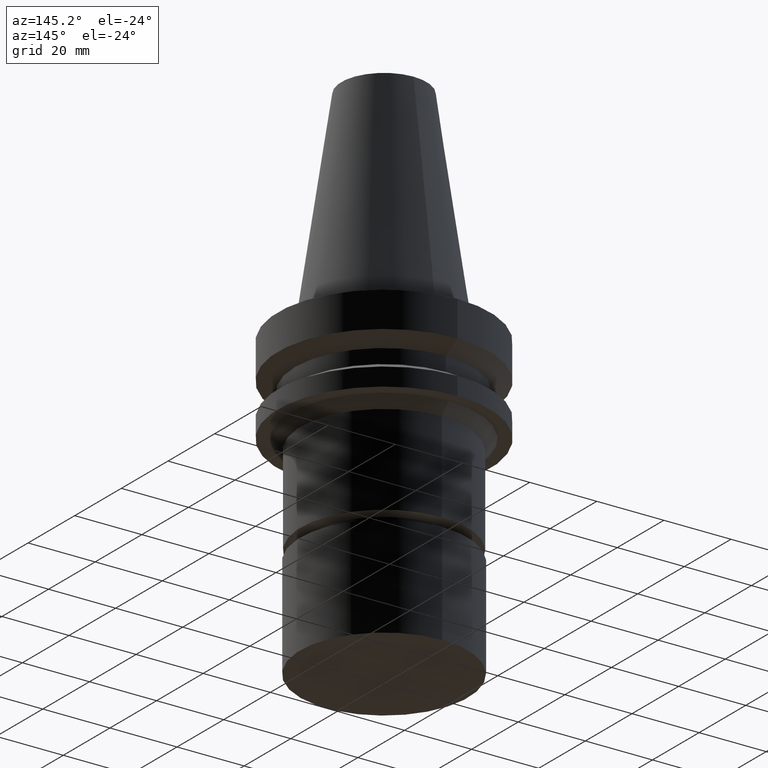
[diagram: clean part render]
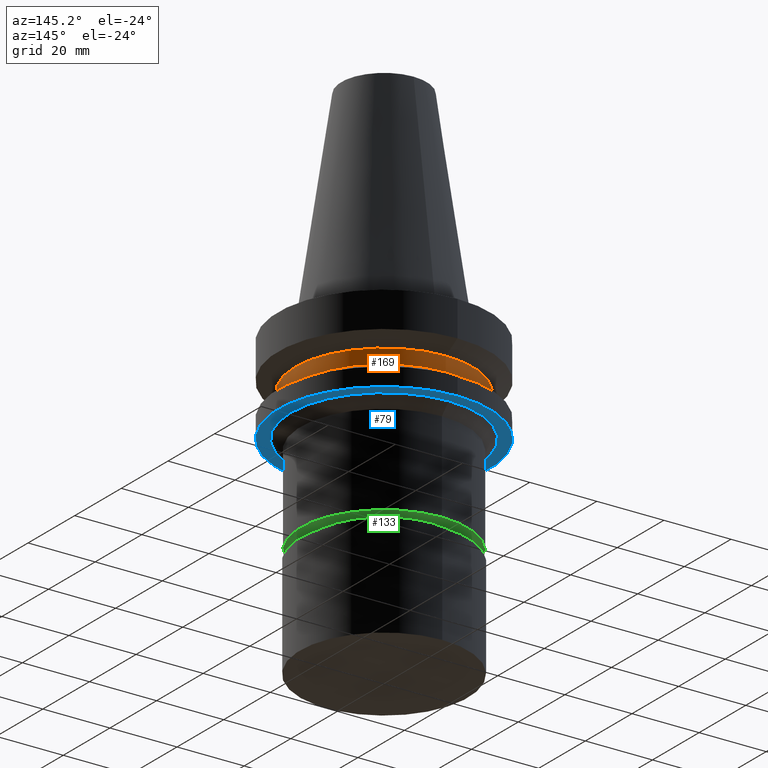
[diagram: same view with three faces highlighted in distinct colors, each labeled with its STEP entity id]
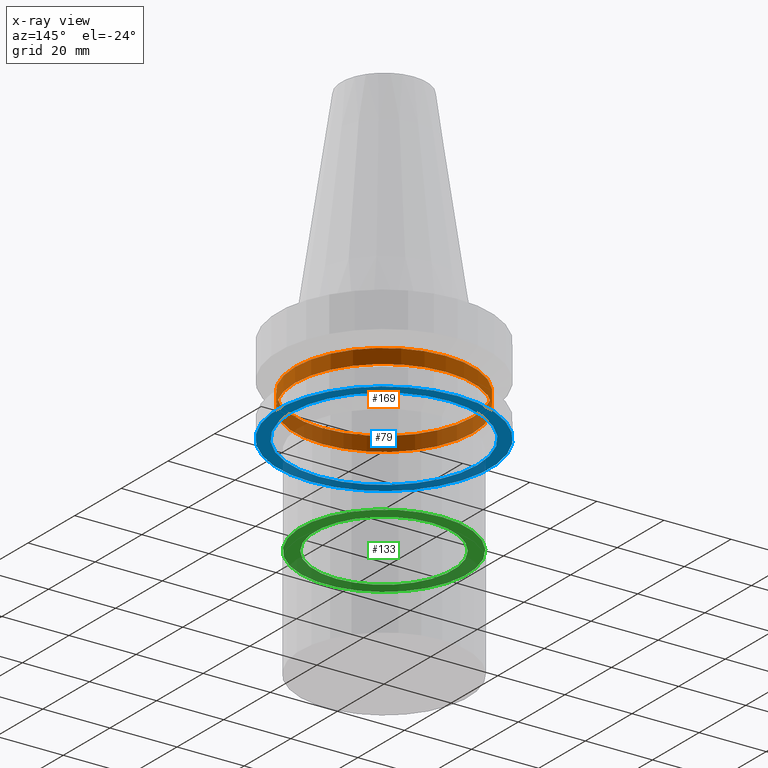
[diagram: x-ray of the same camera — body ghosted, the three highlighted faces saturated]
A machine part, auxiliary view with three faces highlighted in distinct colors.
The next image is the same camera in x-ray (body ghosted, the three faces saturated) — at least one of them is partly hidden behind the body in this view.
Their STEP definitions:

[orange] entity #169 — the highlighted cylindrical surface (bore or boss wall) has radius 26.5 mm, axis along (0, -0, -1).
#81=EDGE_CURVE('Unnamed[1]',#211,#211,#212,.T.);
#100=EDGE_CURVE('Unnamed[1]',#240,#240,#241,.T.);
#169=ADVANCED_FACE('Unnamed[1]',(#346,#347),#348,.T.);
#211=VERTEX_POINT('',#389);
#212=CIRCLE('',#390,26.4999999999994);
#240=VERTEX_POINT('',#426);
#241=CIRCLE('',#427,26.5);
#346=FACE_BOUND('',#558,.T.);
#347=FACE_BOUND('',#559,.T.);
#348=CYLINDRICAL_SURFACE('',#560,26.4999999999997);
#389=CARTESIAN_POINT('',(8.8494551369045E-016,26.4999999999995,-14.4522569986152));
#390=AXIS2_PLACEMENT_3D('',#592,#593,#594);
#426=CARTESIAN_POINT('',(1.1479681728942E-015,26.5,-18.7477430013855));
#427=AXIS2_PLACEMENT_3D('',#624,#625,#626);
#558=EDGE_LOOP('',(#741));
#559=EDGE_LOOP('',(#742));
#560=AXIS2_PLACEMENT_3D('',#743,#744,#745);
#592=CARTESIAN_POINT('',(8.84945513690449E-016,5.72797641111494E-014,-14.4522569986152));
#593=DIRECTION('',(6.12323399573677E-017,-2.45986715532853E-016,-1.0));
#594=DIRECTION('',(1.02351894597382E-032,1.0,-2.45986715532853E-016));
#624=CARTESIAN_POINT('',(1.1479681728942E-015,5.62231316177103E-014,-18.7477430013855));
#625=DIRECTION('',(6.12323399573677E-017,-2.4598671553297E-016,-1.0));
#626=DIRECTION('',(1.02351894597447E-032,1.0,-2.4598671553297E-016));
#741=ORIENTED_EDGE('',*,*,#100,.F.);
#742=ORIENTED_EDGE('',*,*,#81,.T.);
#743=CARTESIAN_POINT('',(1.01645684329232E-015,5.67514478644298E-014,-16.6000000000003));
#744=DIRECTION('',(6.12323399573677E-017,-2.45986715532851E-016,-1.0));
#745=DIRECTION('',(1.0235189459738E-032,1.0,-2.45986715532851E-016));

[blue] entity #79 — the highlighted conical surface has half-angle 89.998 deg.
#79=ADVANCED_FACE('Unnamed[1]',(#207,#208),#209,.F.);
#135=EDGE_CURVE('Unnamed[1]',#292,#292,#293,.T.);
#154=EDGE_CURVE('Unnamed[1]',#323,#323,#324,.T.);
#207=FACE_BOUND('',#384,.T.);
#208=FACE_BOUND('',#385,.T.);
#209=CONICAL_SURFACE('',#386,29.6500621984489,1.57075486116235);
#292=VERTEX_POINT('',#491);
#293=CIRCLE('',#492,31.5000000000003);
#323=VERTEX_POINT('',#529);
#324=CIRCLE('',#530,27.8001243968974);
#384=EDGE_LOOP('',(#587));
#385=EDGE_LOOP('',(#588));
#386=AXIS2_PLACEMENT_3D('',#589,#590,#591);
#491=CARTESIAN_POINT('',(1.65328282719222E-015,31.5000000000004,-27.0001575694036));
#492=AXIS2_PLACEMENT_3D('',#680,#681,#682);
#529=CARTESIAN_POINT('',(1.65327343306854E-015,27.8001243968975,-27.0000041517213));
#530=AXIS2_PLACEMENT_3D('',#716,#717,#718);
#587=ORIENTED_EDGE('',*,*,#154,.F.);
#588=ORIENTED_EDGE('',*,*,#135,.T.);
#589=CARTESIAN_POINT('',(1.65327813013038E-015,5.41931661322635E-014,-27.0000808605625));
#590=DIRECTION('',(6.12323399573677E-017,-2.45986715532965E-016,-1.0));
#591=DIRECTION('',(1.02351894597422E-032,1.0,-2.45986715532965E-016));
#680=CARTESIAN_POINT('',(1.65328282719222E-015,5.41931472629076E-014,-27.0001575694036));
#681=DIRECTION('',(6.12323399573677E-017,-2.45986715532946E-016,-1.0));
#682=DIRECTION('',(1.02351894597414E-032,1.0,-2.45986715532946E-016));
#716=CARTESIAN_POINT('',(1.65327343306854E-015,5.41931850016194E-014,-27.0000041517213));
#717=DIRECTION('',(6.12323399573677E-017,-2.45986715532871E-016,-1.0));
#718=DIRECTION('',(1.02351894597366E-032,1.0,-2.45986715532871E-016));

[green] entity #133 — the highlighted planar face has unit normal (0, 0, -1).
#105=EDGE_CURVE('Unnamed[1]',#248,#248,#249,.T.);
#119=EDGE_CURVE('Unnamed[1]',#269,#269,#270,.T.);
#133=ADVANCED_FACE('Unnamed[1]',(#288,#289),#290,.T.);
#248=VERTEX_POINT('',#436);
#249=CIRCLE('',#437,20.499999999991);
#269=VERTEX_POINT('',#463);
#270=CIRCLE('',#464,24.8000000000002);
#288=FACE_BOUND('',#486,.T.);
#289=FACE_OUTER_BOUND('',#487,.T.);
#290=PLANE('',#488);
#436=CARTESIAN_POINT('',(3.49025302591329E-015,20.4999999999911,-57.0001575694044));
#437=AXIS2_PLACEMENT_3D('',#633,#634,#635);
#463=CARTESIAN_POINT('',(3.49025302591327E-015,24.8000000000003,-57.0001575694041));
#464=AXIS2_PLACEMENT_3D('',#656,#657,#658);
#486=EDGE_LOOP('',(#675));
#487=EDGE_LOOP('',(#676));
#488=AXIS2_PLACEMENT_3D('',#677,#678,#679);
#633=CARTESIAN_POINT('',(3.49025302591329E-015,4.68135457969201E-014,-57.0001575694044));
#634=DIRECTION('',(6.12323399573677E-017,-2.45986715532896E-016,-1.0));
#635=DIRECTION('',(1.02351894597376E-032,1.0,-2.45986715532896E-016));
#656=CARTESIAN_POINT('',(3.49025302591327E-015,4.68135457969201E-014,-57.0001575694041));
#657=DIRECTION('',(6.12323399573677E-017,-2.45986715532901E-016,-1.0));
#658=DIRECTION('',(1.02351894597315E-032,1.0,-2.45986715532901E-016));
#675=ORIENTED_EDGE('',*,*,#105,.F.);
#676=ORIENTED_EDGE('',*,*,#119,.T.);
#677=CARTESIAN_POINT('',(3.49025302591328E-015,22.6499999999957,-57.0001575694043));
#678=DIRECTION('',(6.12323399573677E-017,7.44815881895336E-014,-1.0));
#679=DIRECTION('',(-4.56550908131695E-030,1.0,7.44815881895336E-014));